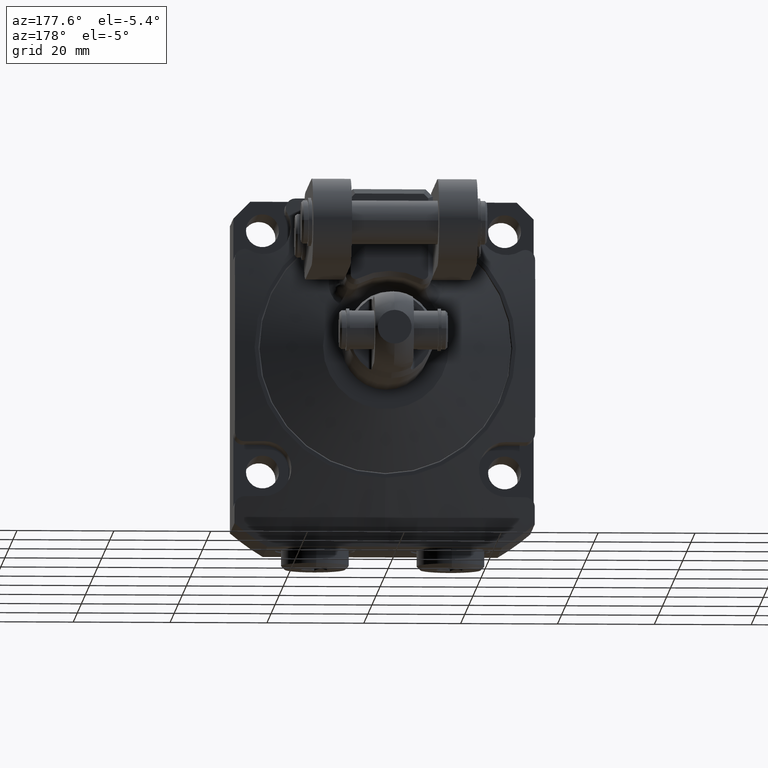
[diagram: clean part render]
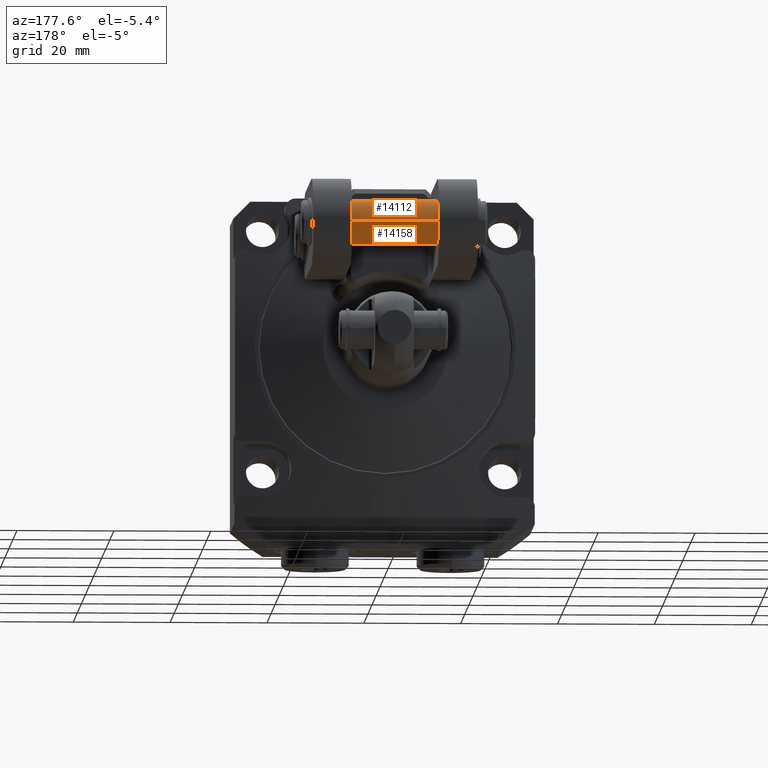
[diagram: same view with one multi-face feature highlighted, each face labeled with its STEP entity id]
A machine part, auxiliary view. The highlighted faces form ONE feature: a constant-radius fillet chain: 2 tangent blend faces with common blend radius 4.5 mm. The faces share edges in the B-rep.
Their STEP definitions:
[1] entity #14112 (Cylinder):
#6570=CARTESIAN_POINT('',(9.E0,5.149999999737E1,2.200040036035E1));
#6571=DIRECTION('',(-1.E0,0.E0,0.E0));
#6572=DIRECTION('',(0.E0,-9.999999999138E-1,-1.312656891075E-5));
#6573=AXIS2_PLACEMENT_3D('',#6570,#6571,#6572);
#6902=CARTESIAN_POINT('',(-9.E0,5.149999999737E1,2.200040036035E1));
#6903=DIRECTION('',(1.E0,0.E0,0.E0));
#6904=DIRECTION('',(0.E0,9.999999999138E-1,1.312656890996E-5));
#6905=AXIS2_PLACEMENT_3D('',#6902,#6903,#6904);
#9337=DIRECTION('',(-1.E0,0.E0,0.E0));
#9338=VECTOR('',#9337,1.8E1);
#9339=CARTESIAN_POINT('',(9.E0,5.599999999698E1,2.200045942991E1));
#9340=LINE('',#9339,#9338);
#9344=DIRECTION('',(-1.E0,0.E0,0.E0));
#9345=VECTOR('',#9344,1.8E1);
#9346=CARTESIAN_POINT('',(9.E0,4.699999999776E1,2.200034129079E1));
#9347=LINE('',#9346,#9345);
#11096=CARTESIAN_POINT('',(9.E0,5.599999999698E1,2.200045942991E1));
#11097=CARTESIAN_POINT('',(-9.E0,5.599999999698E1,2.200045942991E1));
#11098=VERTEX_POINT('',#11096);
#11099=VERTEX_POINT('',#11097);
#11104=CARTESIAN_POINT('',(9.E0,4.699999999776E1,2.200034129079E1));
#11105=CARTESIAN_POINT('',(-9.E0,4.699999999776E1,2.200034129079E1));
#11106=VERTEX_POINT('',#11104);
#11107=VERTEX_POINT('',#11105);
#14099=CARTESIAN_POINT('',(-2.1065E1,5.149999999737E1,2.200040036035E1));
#14100=DIRECTION('',(1.E0,0.E0,0.E0));
#14101=DIRECTION('',(0.E0,-9.999999999138E-1,-1.312656891022E-5));
#14102=AXIS2_PLACEMENT_3D('',#14099,#14100,#14101);
#14103=CYLINDRICAL_SURFACE('',#14102,4.5E0);
#14105=ORIENTED_EDGE('',*,*,#14104,.F.);
#14106=ORIENTED_EDGE('',*,*,#11773,.F.);
#14108=ORIENTED_EDGE('',*,*,#14107,.T.);
#14109=ORIENTED_EDGE('',*,*,#12127,.F.);
#14110=EDGE_LOOP('',(#14105,#14106,#14108,#14109));
#14111=FACE_OUTER_BOUND('',#14110,.F.);
#14112=ADVANCED_FACE('',(#14111),#14103,.T.);
#6574=CIRCLE('',#6573,4.5E0);
#6906=CIRCLE('',#6905,4.5E0);
#11773=EDGE_CURVE('',#11106,#11098,#6574,.T.);
#12127=EDGE_CURVE('',#11099,#11107,#6906,.T.);
#14104=EDGE_CURVE('',#11098,#11099,#9340,.T.);
#14107=EDGE_CURVE('',#11106,#11107,#9347,.T.);
[2] entity #14158 (Cylinder):
#6578=CARTESIAN_POINT('',(9.E0,5.149999999737E1,2.200040036035E1));
#6579=DIRECTION('',(-1.E0,0.E0,0.E0));
#6580=DIRECTION('',(0.E0,9.999999999138E-1,1.312656890996E-5));
#6581=AXIS2_PLACEMENT_3D('',#6578,#6579,#6580);
#6910=CARTESIAN_POINT('',(-9.E0,5.149999999737E1,2.200040036035E1));
#6911=DIRECTION('',(1.E0,0.E0,0.E0));
#6912=DIRECTION('',(0.E0,-9.999999999138E-1,-1.312656891075E-5));
#6913=AXIS2_PLACEMENT_3D('',#6910,#6911,#6912);
#9337=DIRECTION('',(-1.E0,0.E0,0.E0));
#9338=VECTOR('',#9337,1.8E1);
#9339=CARTESIAN_POINT('',(9.E0,5.599999999698E1,2.200045942991E1));
#9340=LINE('',#9339,#9338);
#9344=DIRECTION('',(-1.E0,0.E0,0.E0));
#9345=VECTOR('',#9344,1.8E1);
#9346=CARTESIAN_POINT('',(9.E0,4.699999999776E1,2.200034129079E1));
#9347=LINE('',#9346,#9345);
#11096=CARTESIAN_POINT('',(9.E0,5.599999999698E1,2.200045942991E1));
#11097=CARTESIAN_POINT('',(-9.E0,5.599999999698E1,2.200045942991E1));
#11098=VERTEX_POINT('',#11096);
#11099=VERTEX_POINT('',#11097);
#11104=CARTESIAN_POINT('',(9.E0,4.699999999776E1,2.200034129079E1));
#11105=CARTESIAN_POINT('',(-9.E0,4.699999999776E1,2.200034129079E1));
#11106=VERTEX_POINT('',#11104);
#11107=VERTEX_POINT('',#11105);
#14147=CARTESIAN_POINT('',(-2.1065E1,5.149999999737E1,2.200040036035E1));
#14148=DIRECTION('',(1.E0,0.E0,0.E0));
#14149=DIRECTION('',(0.E0,-9.999999999138E-1,-1.312656891022E-5));
#14150=AXIS2_PLACEMENT_3D('',#14147,#14148,#14149);
#14151=CYLINDRICAL_SURFACE('',#14150,4.5E0);
#14152=ORIENTED_EDGE('',*,*,#14104,.T.);
#14153=ORIENTED_EDGE('',*,*,#12129,.F.);
#14154=ORIENTED_EDGE('',*,*,#14107,.F.);
#14155=ORIENTED_EDGE('',*,*,#11775,.F.);
#14156=EDGE_LOOP('',(#14152,#14153,#14154,#14155));
#14157=FACE_OUTER_BOUND('',#14156,.F.);
#14158=ADVANCED_FACE('',(#14157),#14151,.T.);
#6582=CIRCLE('',#6581,4.5E0);
#6914=CIRCLE('',#6913,4.5E0);
#11775=EDGE_CURVE('',#11098,#11106,#6582,.T.);
#12129=EDGE_CURVE('',#11107,#11099,#6914,.T.);
#14104=EDGE_CURVE('',#11098,#11099,#9340,.T.);
#14107=EDGE_CURVE('',#11106,#11107,#9347,.T.);